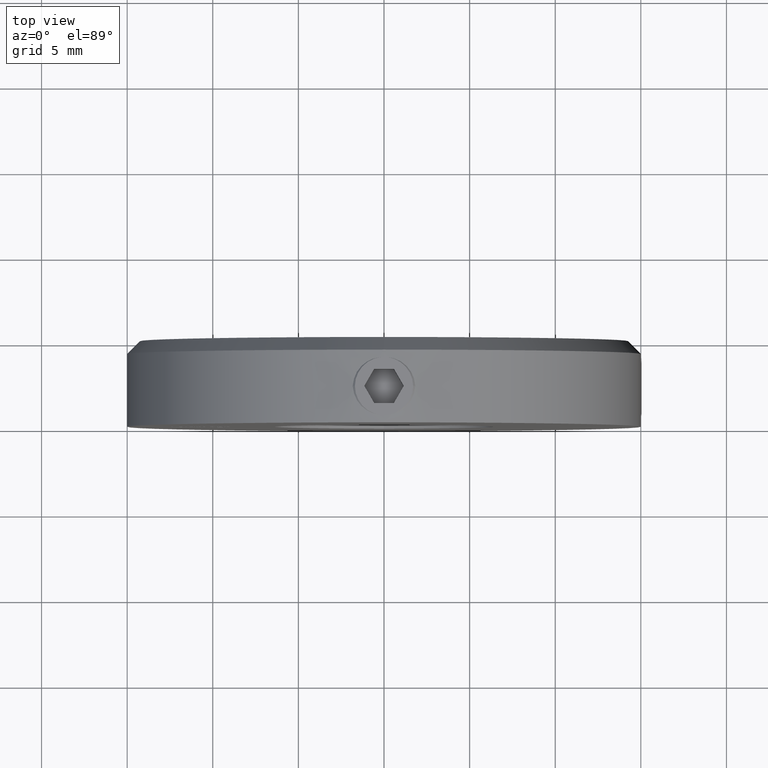
[diagram: clean part render]
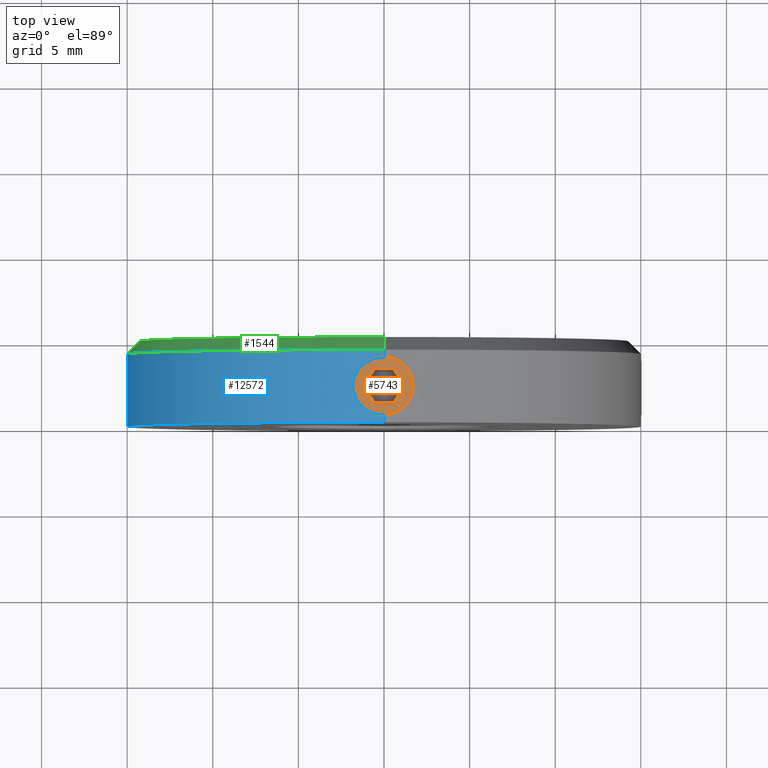
[diagram: same view with three faces highlighted in distinct colors, each labeled with its STEP entity id]
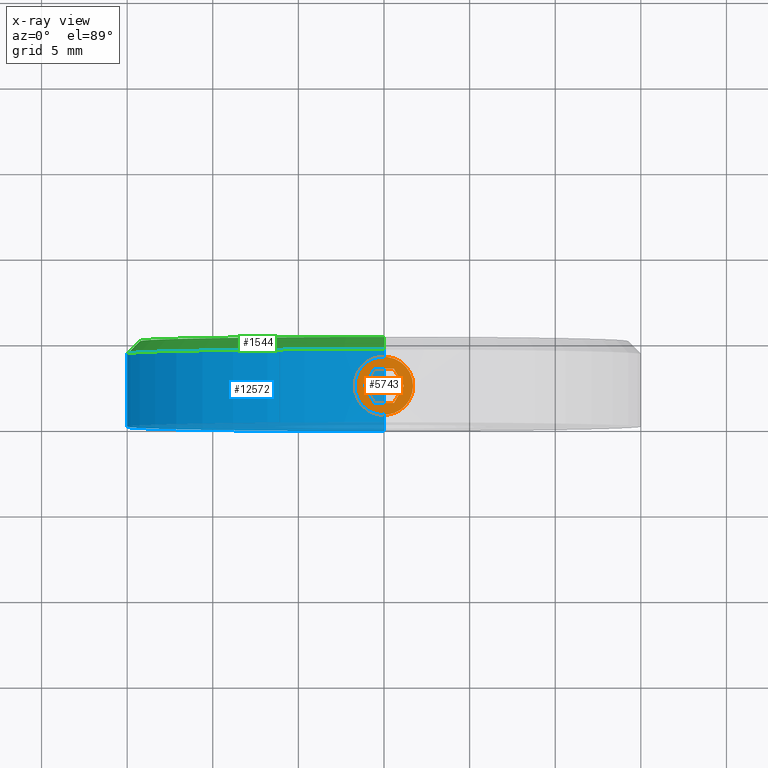
[diagram: x-ray of the same camera — body ghosted, the three highlighted faces saturated]
A machine part, top view with three faces highlighted in distinct colors.
The next image is the same camera in x-ray (body ghosted, the three faces saturated) — at least one of them is partly hidden behind the body in this view.
Their STEP definitions:

[orange] entity #5743 — the highlighted planar face has unit normal (0, 0, -1).
#308 = DIRECTION ( 'NONE',  ( 1.000000000000000000, -1.877893248421449775E-16, 0.000000000000000000 ) ) ;
#724 = LINE ( 'NONE', #12227, #5665 ) ;
#741 = CARTESIAN_POINT ( 'NONE',  ( 0.5773502691896256200, -1.000000000000000222, 0.000000000000000000 ) ) ;
#929 = CARTESIAN_POINT ( 'NONE',  ( 1.154700538379251684, -6.101876784632254790E-16, 0.000000000000000000 ) ) ;
#1208 = VECTOR ( 'NONE', #13959, 1000.000000000000114 ) ;
#1636 = VERTEX_POINT ( 'NONE', #14158 ) ;
#1647 = VERTEX_POINT ( 'NONE', #9585 ) ;
#1763 = LINE ( 'NONE', #741, #3414 ) ;
#2056 = VECTOR ( 'NONE', #9568, 1000.000000000000114 ) ;
#2112 = CIRCLE ( 'NONE', #10205, 1.700000000000000400 ) ;
#2131 = DIRECTION ( 'NONE',  ( -1.000000000000000000, 0.000000000000000000, 0.000000000000000000 ) ) ;
#2430 = EDGE_CURVE ( 'NONE', #1647, #6485, #8092, .T. ) ;
#2821 = EDGE_LOOP ( 'NONE', ( #10694, #3043 ) ) ;
#2850 = EDGE_LOOP ( 'NONE', ( #12770, #14261, #14128, #2980, #4021, #6413 ) ) ;
#2902 = FACE_BOUND ( 'NONE', #2850, .T. ) ;
#2980 = ORIENTED_EDGE ( 'NONE', *, *, #8331, .F. ) ;
#3043 = ORIENTED_EDGE ( 'NONE', *, *, #7282, .T. ) ;
#3371 = CARTESIAN_POINT ( 'NONE',  ( 1.154700538379251684, -6.101876784632254790E-16, 0.000000000000000000 ) ) ;
#3414 = VECTOR ( 'NONE', #7738, 1000.000000000000114 ) ;
#3576 = VERTEX_POINT ( 'NONE', #6599 ) ;
#4021 = ORIENTED_EDGE ( 'NONE', *, *, #10273, .F. ) ;
#4131 = DIRECTION ( 'NONE',  ( -1.000000000000000000, 0.000000000000000000, -0.000000000000000000 ) ) ;
#4312 = LINE ( 'NONE', #12908, #1208 ) ;
#4483 = VECTOR ( 'NONE', #6747, 1000.000000000000227 ) ;
#4613 = AXIS2_PLACEMENT_3D ( 'NONE', #14627, #7456, #5295 ) ;
#5104 = PLANE ( 'NONE',  #11062 ) ;
#5295 = DIRECTION ( 'NONE',  ( -1.000000000000000000, 0.000000000000000000, 0.000000000000000000 ) ) ;
#5665 = VECTOR ( 'NONE', #12071, 1000.000000000000000 ) ;
#5743 = ADVANCED_FACE ( 'NONE', ( #12753, #2902 ), #5104, .F. ) ;
#6188 = CARTESIAN_POINT ( 'NONE',  ( -1.154700538379251684, 3.352939315295610176E-16, 0.000000000000000000 ) ) ;
#6413 = ORIENTED_EDGE ( 'NONE', *, *, #7844, .F. ) ;
#6485 = VERTEX_POINT ( 'NONE', #7585 ) ;
#6599 = CARTESIAN_POINT ( 'NONE',  ( 0.5773502691896251759, 1.000000000000000000, 0.000000000000000000 ) ) ;
#6705 = CIRCLE ( 'NONE', #4613, 1.700000000000000400 ) ;
#6729 = DIRECTION ( 'NONE',  ( -0.000000000000000000, -0.000000000000000000, 1.000000000000000000 ) ) ;
#6747 = DIRECTION ( 'NONE',  ( -0.5000000000000002220, 0.8660254037844384856, 0.000000000000000000 ) ) ;
#7088 = VERTEX_POINT ( 'NONE', #9312 ) ;
#7282 = EDGE_CURVE ( 'NONE', #12542, #13687, #6705, .T. ) ;
#7425 = EDGE_CURVE ( 'NONE', #7088, #11212, #1763, .T. ) ;
#7456 = DIRECTION ( 'NONE',  ( -0.000000000000000000, -0.000000000000000000, 1.000000000000000000 ) ) ;
#7585 = CARTESIAN_POINT ( 'NONE',  ( -0.5773502691896258421, -1.000000000000000000, 0.000000000000000000 ) ) ;
#7738 = DIRECTION ( 'NONE',  ( 0.5000000000000003331, 0.8660254037844384856, 0.000000000000000000 ) ) ;
#7844 = EDGE_CURVE ( 'NONE', #11212, #3576, #8349, .T. ) ;
#8092 = LINE ( 'NONE', #6188, #2056 ) ;
#8222 = EDGE_CURVE ( 'NONE', #13687, #12542, #2112, .T. ) ;
#8331 = EDGE_CURVE ( 'NONE', #1636, #1647, #4312, .T. ) ;
#8349 = LINE ( 'NONE', #929, #4483 ) ;
#9072 = EDGE_CURVE ( 'NONE', #6485, #7088, #12163, .T. ) ;
#9312 = CARTESIAN_POINT ( 'NONE',  ( 0.5773502691896256200, -1.000000000000000222, 0.000000000000000000 ) ) ;
#9568 = DIRECTION ( 'NONE',  ( 0.4999999999999998335, -0.8660254037844387076, 0.000000000000000000 ) ) ;
#9585 = CARTESIAN_POINT ( 'NONE',  ( -1.154700538379251684, 3.352939315295610176E-16, 0.000000000000000000 ) ) ;
#10205 = AXIS2_PLACEMENT_3D ( 'NONE', #11416, #6729, #2131 ) ;
#10273 = EDGE_CURVE ( 'NONE', #3576, #1636, #724, .T. ) ;
#10666 = CARTESIAN_POINT ( 'NONE',  ( 1.700000000000000400, 2.265596578422603594E-16, 0.000000000000000000 ) ) ;
#10694 = ORIENTED_EDGE ( 'NONE', *, *, #8222, .T. ) ;
#11062 = AXIS2_PLACEMENT_3D ( 'NONE', #13069, #14242, #4131 ) ;
#11212 = VERTEX_POINT ( 'NONE', #3371 ) ;
#11416 = CARTESIAN_POINT ( 'NONE',  ( 0.000000000000000000, 0.000000000000000000, 0.000000000000000000 ) ) ;
#12008 = CARTESIAN_POINT ( 'NONE',  ( -0.5773502691896258421, -1.000000000000000000, 0.000000000000000000 ) ) ;
#12071 = DIRECTION ( 'NONE',  ( -1.000000000000000000, 0.000000000000000000, 0.000000000000000000 ) ) ;
#12163 = LINE ( 'NONE', #12008, #15075 ) ;
#12227 = CARTESIAN_POINT ( 'NONE',  ( 0.5773502691896251759, 1.000000000000000000, 0.000000000000000000 ) ) ;
#12542 = VERTEX_POINT ( 'NONE', #10666 ) ;
#12753 = FACE_OUTER_BOUND ( 'NONE', #2821, .T. ) ;
#12770 = ORIENTED_EDGE ( 'NONE', *, *, #7425, .F. ) ;
#12908 = CARTESIAN_POINT ( 'NONE',  ( -0.5773502691896258421, 1.000000000000000000, 0.000000000000000000 ) ) ;
#13069 = CARTESIAN_POINT ( 'NONE',  ( 0.000000000000000000, 0.000000000000000000, 0.000000000000000000 ) ) ;
#13687 = VERTEX_POINT ( 'NONE', #14714 ) ;
#13959 = DIRECTION ( 'NONE',  ( -0.5000000000000002220, -0.8660254037844384856, 0.000000000000000000 ) ) ;
#14128 = ORIENTED_EDGE ( 'NONE', *, *, #2430, .F. ) ;
#14158 = CARTESIAN_POINT ( 'NONE',  ( -0.5773502691896258421, 1.000000000000000000, 0.000000000000000000 ) ) ;
#14242 = DIRECTION ( 'NONE',  ( 0.000000000000000000, 0.000000000000000000, -1.000000000000000000 ) ) ;
#14261 = ORIENTED_EDGE ( 'NONE', *, *, #9072, .F. ) ;
#14627 = CARTESIAN_POINT ( 'NONE',  ( 0.000000000000000000, 0.000000000000000000, 0.000000000000000000 ) ) ;
#14714 = CARTESIAN_POINT ( 'NONE',  ( -1.700000000000000400, 0.000000000000000000, 0.000000000000000000 ) ) ;
#15075 = VECTOR ( 'NONE', #308, 1000.000000000000000 ) ;

[blue] entity #12572 — the highlighted cylindrical surface (partial cylindrical patch) has radius 15 mm, axis along (-0, -1, -0).
#33 = CARTESIAN_POINT ( 'NONE',  ( 5.744818617471457423E-16, 3.774999999999998579, 15.00000000000000000 ) ) ;
#182 = CARTESIAN_POINT ( 'NONE',  ( -1.442095268063127156, 2.955118063080741653, 14.93074692135326842 ) ) ;
#520 = CARTESIAN_POINT ( 'NONE',  ( 1.836970221558487320E-15, 0.4750000000000021982, 15.00000000000000000 ) ) ;
#624 = DIRECTION ( 'NONE',  ( -0.000000000000000000, -1.000000000000000000, -0.000000000000000000 ) ) ;
#1358 = VECTOR ( 'NONE', #4370, 1000.000000000000000 ) ;
#1415 = VERTEX_POINT ( 'NONE', #12777 ) ;
#1576 = VERTEX_POINT ( 'NONE', #8593 ) ;
#1644 = CARTESIAN_POINT ( 'NONE',  ( -1.431368140084537499, 1.297215830471138975, 14.93167039471991586 ) ) ;
#1735 = CARTESIAN_POINT ( 'NONE',  ( -1.649999999999998135, 2.125000000000000000, 14.90897380774411118 ) ) ;
#1835 = VERTEX_POINT ( 'NONE', #10115 ) ;
#2457 = ORIENTED_EDGE ( 'NONE', *, *, #14359, .F. ) ;
#2534 = CARTESIAN_POINT ( 'NONE',  ( -0.5322994382394465873, 3.690521579373805761, 14.99088582490423249 ) ) ;
#2738 = EDGE_CURVE ( 'NONE', #13088, #1835, #14120, .T. ) ;
#2801 = CARTESIAN_POINT ( 'NONE',  ( -1.606676250081338519, 2.557811954834371626, 14.91393421666780128 ) ) ;
#3018 = LINE ( 'NONE', #9455, #9604 ) ;
#3986 = CARTESIAN_POINT ( 'NONE',  ( -0.7321267858325392064, 3.607629716720127000, 14.98245610294691410 ) ) ;
#4053 = CARTESIAN_POINT ( 'NONE',  ( -0.7313740760446919564, 0.6420010316035320574, 14.98249281321543869 ) ) ;
#4370 = DIRECTION ( 'NONE',  ( -0.000000000000000000, -1.000000000000000000, -0.000000000000000000 ) ) ;
#4512 = CARTESIAN_POINT ( 'NONE',  ( 1.836970221558487320E-15, 0.4750000000000021982, 15.00000000000000000 ) ) ;
#4855 = VERTEX_POINT ( 'NONE', #8590 ) ;
#4880 = CARTESIAN_POINT ( 'NONE',  ( -1.319212716965709076, 3.139143785350914317, 14.94265569037738928 ) ) ;
#4897 = DIRECTION ( 'NONE',  ( 0.000000000000000000, 0.000000000000000000, -1.000000000000000000 ) ) ;
#5140 = CARTESIAN_POINT ( 'NONE',  ( -0.2163880797680105827, 3.764283804285201374, 14.99881048418064644 ) ) ;
#5164 = CARTESIAN_POINT ( 'NONE',  ( -0.4286963871601592313, 0.5280150042612714589, 14.99424624518204574 ) ) ;
#5214 = CARTESIAN_POINT ( 'NONE',  ( -1.243774548564759996, 1.035330012983979087, 14.94854468685967674 ) ) ;
#5236 = CARTESIAN_POINT ( 'NONE',  ( 1.836970198721029589E-15, 5.000000000000000000, 15.00000000000000000 ) ) ;
#5294 = B_SPLINE_CURVE_WITH_KNOTS ( 'NONE', 3,
 ( #520, #13337, #8713, #5164, #11031, #4053, #7476, #9883, #8617, #5214, #12109, #1644, #7612, #9778, #13380, #14462, #6400, #1735 ),
 .UNSPECIFIED., .F., .F.,
 ( 4, 2, 2, 2, 2, 2, 2, 2, 4 ),
 ( 0.002581877970016892548, 0.002904462567946877478, 0.003227047165876861974, 0.003549631763806846904, 0.003872216361736831834, 0.004194800959666816764, 0.004517385557596802562, 0.004839970155526788359, 0.005162554753456773289 ),
 .UNSPECIFIED. ) ;
#5586 = CIRCLE ( 'NONE', #14422, 15.00000000000000000 ) ;
#5875 = AXIS2_PLACEMENT_3D ( 'NONE', #6822, #14992, #10175 ) ;
#5955 = DIRECTION ( 'NONE',  ( -0.000000000000000000, -1.000000000000000000, -0.000000000000000000 ) ) ;
#6397 = EDGE_CURVE ( 'NONE', #4855, #1576, #14459, .T. ) ;
#6400 = CARTESIAN_POINT ( 'NONE',  ( -1.649999999999998357, 2.017297039934431879, 14.90897380774411118 ) ) ;
#6752 = ORIENTED_EDGE ( 'NONE', *, *, #2738, .T. ) ;
#6822 = CARTESIAN_POINT ( 'NONE',  ( 0.000000000000000000, 0.000000000000000000, 0.000000000000000000 ) ) ;
#7015 = CARTESIAN_POINT ( 'NONE',  ( -0.1091107845559495387, 3.774999999999999911, 15.00000000000000355 ) ) ;
#7135 = CARTESIAN_POINT ( 'NONE',  ( 0.000000000000000000, 4.250000000000002665, -15.00000000000000000 ) ) ;
#7175 = CARTESIAN_POINT ( 'NONE',  ( -1.649999999999997913, 2.340506560348361020, 14.90897380774411118 ) ) ;
#7238 = ORIENTED_EDGE ( 'NONE', *, *, #13945, .T. ) ;
#7476 = CARTESIAN_POINT ( 'NONE',  ( -0.8278453078856635727, 0.6936663057541263555, 14.97740562573100043 ) ) ;
#7494 = CARTESIAN_POINT ( 'NONE',  ( 0.000000000000000000, 0.000000000000000000, -15.00000000000000000 ) ) ;
#7612 = CARTESIAN_POINT ( 'NONE',  ( -1.483035749894604294, 1.393703009070131449, 14.92656473252543314 ) ) ;
#8374 = CARTESIAN_POINT ( 'NONE',  ( -1.091033510617537949, 3.367466631826402601, 14.96046343523998345 ) ) ;
#8590 = CARTESIAN_POINT ( 'NONE',  ( -1.649999999999998135, 2.125000000000000000, 14.90897380774411118 ) ) ;
#8593 = CARTESIAN_POINT ( 'NONE',  ( 5.744818617471457423E-16, 3.774999999999998579, 15.00000000000000000 ) ) ;
#8617 = CARTESIAN_POINT ( 'NONE',  ( -1.089796620804549088, 0.8813364066018687382, 14.96055836885713042 ) ) ;
#8713 = CARTESIAN_POINT ( 'NONE',  ( -0.2170753727486849360, 0.4857867888755837971, 14.99880259674305094 ) ) ;
#9455 = CARTESIAN_POINT ( 'NONE',  ( 0.000000000000000000, 5.000000000000000000, -15.00000000000000000 ) ) ;
#9524 = ORIENTED_EDGE ( 'NONE', *, *, #6397, .T. ) ;
#9604 = VECTOR ( 'NONE', #5955, 1000.000000000000000 ) ;
#9658 = LINE ( 'NONE', #5236, #10361 ) ;
#9778 = CARTESIAN_POINT ( 'NONE',  ( -1.565785605908170730, 1.593487290143204449, 14.91811131430745974 ) ) ;
#9883 = CARTESIAN_POINT ( 'NONE',  ( -1.006475608400358102, 0.8131117243579856213, 14.96646297497047406 ) ) ;
#10115 = CARTESIAN_POINT ( 'NONE',  ( 1.836970198721029589E-15, 0.000000000000000000, 15.00000000000000000 ) ) ;
#10175 = DIRECTION ( 'NONE',  ( 0.000000000000000000, 0.000000000000000000, 1.000000000000000000 ) ) ;
#10361 = VECTOR ( 'NONE', #624, 1000.000000000000000 ) ;
#10554 = CARTESIAN_POINT ( 'NONE',  ( -1.006172428539436448, 3.437150923989493290, 14.96648535665916668 ) ) ;
#10834 = VERTEX_POINT ( 'NONE', #7135 ) ;
#10856 = LINE ( 'NONE', #14734, #1358 ) ;
#10942 = EDGE_CURVE ( 'NONE', #11931, #1835, #9658, .T. ) ;
#11031 = CARTESIAN_POINT ( 'NONE',  ( -0.5315619969269193001, 0.5592299585193615252, 14.99091193959145407 ) ) ;
#11093 = CYLINDRICAL_SURFACE ( 'NONE', #12565, 15.00000000000000000 ) ;
#11097 = ORIENTED_EDGE ( 'NONE', *, *, #11341, .T. ) ;
#11236 = FACE_OUTER_BOUND ( 'NONE', #15070, .T. ) ;
#11341 = EDGE_CURVE ( 'NONE', #1415, #10834, #5586, .T. ) ;
#11718 = CARTESIAN_POINT ( 'NONE',  ( -0.8268763598755374256, 3.556921257876428211, 14.97746114575248733 ) ) ;
#11891 = DIRECTION ( 'NONE',  ( -0.000000000000000000, -1.000000000000000000, -0.000000000000000000 ) ) ;
#11931 = VERTEX_POINT ( 'NONE', #4512 ) ;
#11936 = DIRECTION ( 'NONE',  ( 0.000000000000000000, 0.000000000000000000, 1.000000000000000000 ) ) ;
#12109 = CARTESIAN_POINT ( 'NONE',  ( -1.311945138621573914, 1.118599812689369255, 14.94263683163890377 ) ) ;
#12136 = CARTESIAN_POINT ( 'NONE',  ( -0.4274294117497308143, 3.722303756343397829, 14.99428037084154930 ) ) ;
#12565 = AXIS2_PLACEMENT_3D ( 'NONE', #12861, #11891, #4897 ) ;
#12572 = ADVANCED_FACE ( 'NONE', ( #11236 ), #11093, .T. ) ;
#12777 = CARTESIAN_POINT ( 'NONE',  ( 1.836970198721029589E-15, 4.250000000000002665, 15.00000000000000000 ) ) ;
#12861 = CARTESIAN_POINT ( 'NONE',  ( 0.000000000000000000, 5.000000000000000000, 0.000000000000000000 ) ) ;
#13015 = DIRECTION ( 'NONE',  ( 0.000000000000000000, -1.000000000000000000, 0.000000000000000000 ) ) ;
#13067 = CARTESIAN_POINT ( 'NONE',  ( 0.000000000000000000, 4.250000000000002665, 0.000000000000000000 ) ) ;
#13088 = VERTEX_POINT ( 'NONE', #7494 ) ;
#13337 = CARTESIAN_POINT ( 'NONE',  ( -0.1076868585463205547, 0.4750000000000016431, 15.00000000000000000 ) ) ;
#13380 = CARTESIAN_POINT ( 'NONE',  ( -1.596990431374824215, 1.696331504252224009, 14.91476021824980158 ) ) ;
#13945 = EDGE_CURVE ( 'NONE', #11931, #4855, #5294, .T. ) ;
#14111 = ORIENTED_EDGE ( 'NONE', *, *, #10942, .F. ) ;
#14120 = CIRCLE ( 'NONE', #5875, 15.00000000000000000 ) ;
#14169 = CARTESIAN_POINT ( 'NONE',  ( -1.649999999999998135, 2.125000000000000000, 14.90897380774411118 ) ) ;
#14359 = EDGE_CURVE ( 'NONE', #1415, #1576, #10856, .T. ) ;
#14422 = AXIS2_PLACEMENT_3D ( 'NONE', #13067, #13015, #11936 ) ;
#14459 = B_SPLINE_CURVE_WITH_KNOTS ( 'NONE', 3,
 ( #14169, #7175, #2801, #182, #4880, #8374, #10554, #11718, #3986, #2534, #12136, #5140, #7015, #33 ),
 .UNSPECIFIED., .F., .F.,
 ( 4, 2, 2, 2, 2, 2, 4 ),
 ( 0.005162554753456773289, 0.005808025380066554264, 0.006453496006676336105, 0.006776231319981226159, 0.007098966633286116212, 0.007421701946591006266, 0.007744437259895896319 ),
 .UNSPECIFIED. ) ;
#14462 = CARTESIAN_POINT ( 'NONE',  ( -1.639207012285491150, 1.907892911162529570, 14.91017944817109608 ) ) ;
#14506 = EDGE_CURVE ( 'NONE', #10834, #13088, #3018, .T. ) ;
#14734 = CARTESIAN_POINT ( 'NONE',  ( 1.836970198721029589E-15, 5.000000000000000000, 15.00000000000000000 ) ) ;
#14989 = ORIENTED_EDGE ( 'NONE', *, *, #14506, .T. ) ;
#14992 = DIRECTION ( 'NONE',  ( 0.000000000000000000, 1.000000000000000000, 0.000000000000000000 ) ) ;
#15070 = EDGE_LOOP ( 'NONE', ( #2457, #11097, #14989, #6752, #14111, #7238, #9524 ) ) ;

[green] entity #1544 — the highlighted conical surface has half-angle 45 deg.
#521 = DIRECTION ( 'NONE',  ( 0.000000000000000000, 0.000000000000000000, 1.000000000000000000 ) ) ;
#1167 = FACE_OUTER_BOUND ( 'NONE', #9361, .T. ) ;
#1415 = VERTEX_POINT ( 'NONE', #12777 ) ;
#1461 = CARTESIAN_POINT ( 'NONE',  ( 0.000000000000000000, 5.000000000000000000, 0.000000000000000000 ) ) ;
#1544 = ADVANCED_FACE ( 'NONE', ( #1167 ), #10311, .T. ) ;
#2803 = DIRECTION ( 'NONE',  ( 0.000000000000000000, 0.000000000000000000, -1.000000000000000000 ) ) ;
#2995 = VERTEX_POINT ( 'NONE', #9603 ) ;
#3166 = EDGE_CURVE ( 'NONE', #2995, #10834, #11196, .T. ) ;
#3758 = ORIENTED_EDGE ( 'NONE', *, *, #11341, .F. ) ;
#3953 = LINE ( 'NONE', #6946, #5031 ) ;
#5031 = VECTOR ( 'NONE', #12671, 1000.000000000000000 ) ;
#5351 = AXIS2_PLACEMENT_3D ( 'NONE', #13288, #13183, #521 ) ;
#5586 = CIRCLE ( 'NONE', #14422, 15.00000000000000000 ) ;
#6946 = CARTESIAN_POINT ( 'NONE',  ( 1.745121688784979017E-15, 5.000000000000000000, 14.25000000000000533 ) ) ;
#7031 = ORIENTED_EDGE ( 'NONE', *, *, #15102, .F. ) ;
#7135 = CARTESIAN_POINT ( 'NONE',  ( 0.000000000000000000, 4.250000000000002665, -15.00000000000000000 ) ) ;
#7454 = DIRECTION ( 'NONE',  ( 0.000000000000000000, -1.000000000000000000, 0.000000000000000000 ) ) ;
#8866 = EDGE_CURVE ( 'NONE', #12827, #1415, #3953, .T. ) ;
#9361 = EDGE_LOOP ( 'NONE', ( #13150, #7031, #10084, #3758 ) ) ;
#9603 = CARTESIAN_POINT ( 'NONE',  ( 0.000000000000000000, 5.000000000000000000, -14.25000000000000533 ) ) ;
#10014 = DIRECTION ( 'NONE',  ( 0.000000000000000000, -0.7071067811865491270, -0.7071067811865459074 ) ) ;
#10084 = ORIENTED_EDGE ( 'NONE', *, *, #3166, .T. ) ;
#10311 = CONICAL_SURFACE ( 'NONE', #13005, 14.25000000000000533, 0.7853981633974460586 ) ;
#10834 = VERTEX_POINT ( 'NONE', #7135 ) ;
#11196 = LINE ( 'NONE', #13695, #13392 ) ;
#11341 = EDGE_CURVE ( 'NONE', #1415, #10834, #5586, .T. ) ;
#11936 = DIRECTION ( 'NONE',  ( 0.000000000000000000, 0.000000000000000000, 1.000000000000000000 ) ) ;
#12310 = CIRCLE ( 'NONE', #5351, 14.25000000000000533 ) ;
#12671 = DIRECTION ( 'NONE',  ( 8.659560562354911904E-17, -0.7071067811865491270, 0.7071067811865459074 ) ) ;
#12777 = CARTESIAN_POINT ( 'NONE',  ( 1.836970198721029589E-15, 4.250000000000002665, 15.00000000000000000 ) ) ;
#12827 = VERTEX_POINT ( 'NONE', #14737 ) ;
#13005 = AXIS2_PLACEMENT_3D ( 'NONE', #1461, #7454, #2803 ) ;
#13015 = DIRECTION ( 'NONE',  ( 0.000000000000000000, -1.000000000000000000, 0.000000000000000000 ) ) ;
#13067 = CARTESIAN_POINT ( 'NONE',  ( 0.000000000000000000, 4.250000000000002665, 0.000000000000000000 ) ) ;
#13150 = ORIENTED_EDGE ( 'NONE', *, *, #8866, .F. ) ;
#13183 = DIRECTION ( 'NONE',  ( 0.000000000000000000, 1.000000000000000000, 0.000000000000000000 ) ) ;
#13288 = CARTESIAN_POINT ( 'NONE',  ( 0.000000000000000000, 5.000000000000000000, 0.000000000000000000 ) ) ;
#13392 = VECTOR ( 'NONE', #10014, 1000.000000000000000 ) ;
#13695 = CARTESIAN_POINT ( 'NONE',  ( 0.000000000000000000, 5.000000000000000000, -14.25000000000000533 ) ) ;
#14422 = AXIS2_PLACEMENT_3D ( 'NONE', #13067, #13015, #11936 ) ;
#14737 = CARTESIAN_POINT ( 'NONE',  ( 1.791045943753004303E-15, 5.000000000000000000, 14.25000000000000533 ) ) ;
#15102 = EDGE_CURVE ( 'NONE', #2995, #12827, #12310, .T. ) ;